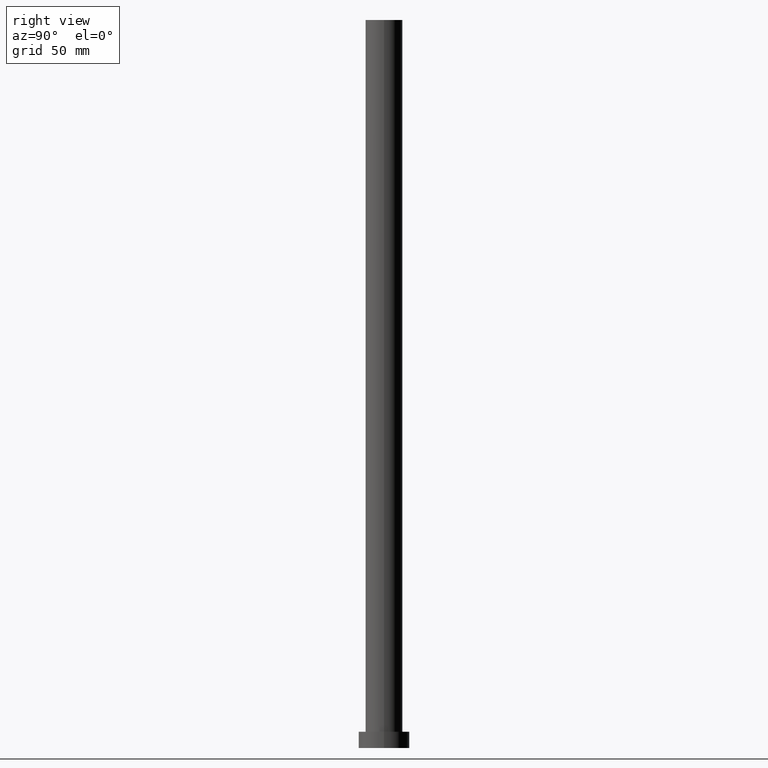
[diagram: clean part render]
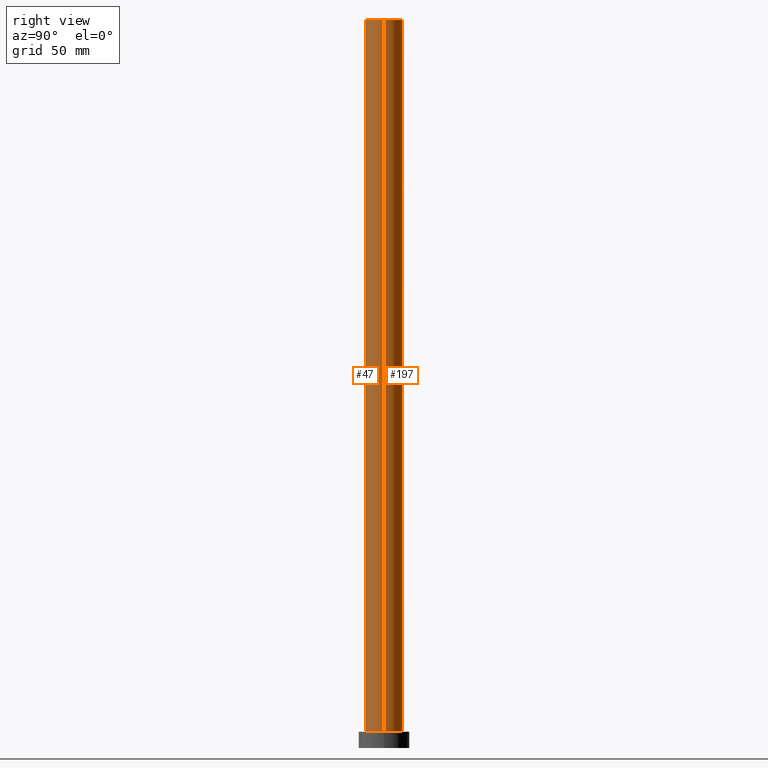
[diagram: same view with one multi-face feature highlighted, each face labeled with its STEP entity id]
A machine part, right view. The highlighted faces form ONE feature: a constant-radius fillet chain: 2 tangent blend faces with common blend radius 8 mm. The faces share edges in the B-rep.
Their STEP definitions:
[1] entity #197 (Cylinder):
#4 = EDGE_CURVE ( 'NONE', #50, #69, #110, .T. ) ;
#16 = CARTESIAN_POINT ( 'NONE',  ( 0.000000000000000000, 0.000000000000000000, 315.0000000000000000 ) ) ;
#26 = CARTESIAN_POINT ( 'NONE',  ( -8.000000000000000000, 0.000000000000000000, 7.000000000000000000 ) ) ;
#30 = EDGE_LOOP ( 'NONE', ( #121, #217, #222, #103 ) ) ;
#37 = DIRECTION ( 'NONE',  ( -1.000000000000000000, 0.000000000000000000, 0.000000000000000000 ) ) ;
#39 = CYLINDRICAL_SURFACE ( 'NONE', #132, 8.000000000000000000 ) ;
#40 = FACE_OUTER_BOUND ( 'NONE', #30, .T. ) ;
#44 = CARTESIAN_POINT ( 'NONE',  ( -8.000000000000000000, 0.000000000000000000, 315.0000000000000000 ) ) ;
#45 = CIRCLE ( 'NONE', #232, 8.000000000000000000 ) ;
#49 = CARTESIAN_POINT ( 'NONE',  ( 8.000000000000000000, 9.797174393178825657E-16, 315.0000000000000000 ) ) ;
#50 = VERTEX_POINT ( 'NONE', #186 ) ;
#55 = DIRECTION ( 'NONE',  ( 1.000000000000000000, 0.000000000000000000, 0.000000000000000000 ) ) ;
#56 = VECTOR ( 'NONE', #112, 1000.000000000000000 ) ;
#69 = VERTEX_POINT ( 'NONE', #131 ) ;
#71 = DIRECTION ( 'NONE',  ( -0.000000000000000000, -0.000000000000000000, -1.000000000000000000 ) ) ;
#72 = EDGE_CURVE ( 'NONE', #89, #91, #80, .T. ) ;
#74 = DIRECTION ( 'NONE',  ( 0.000000000000000000, 0.000000000000000000, 1.000000000000000000 ) ) ;
#80 = LINE ( 'NONE', #44, #192 ) ;
#89 = VERTEX_POINT ( 'NONE', #219 ) ;
#91 = VERTEX_POINT ( 'NONE', #26 ) ;
#96 = CARTESIAN_POINT ( 'NONE',  ( 0.000000000000000000, 0.000000000000000000, 315.0000000000000000 ) ) ;
#101 = EDGE_CURVE ( 'NONE', #69, #91, #105, .T. ) ;
#103 = ORIENTED_EDGE ( 'NONE', *, *, #72, .F. ) ;
#105 = CIRCLE ( 'NONE', #144, 8.000000000000000000 ) ;
#110 = LINE ( 'NONE', #49, #56 ) ;
#112 = DIRECTION ( 'NONE',  ( -0.000000000000000000, -0.000000000000000000, -1.000000000000000000 ) ) ;
#121 = ORIENTED_EDGE ( 'NONE', *, *, #152, .F. ) ;
#131 = CARTESIAN_POINT ( 'NONE',  ( 8.000000000000000000, 9.797174393178825657E-16, 7.000000000000000000 ) ) ;
#132 = AXIS2_PLACEMENT_3D ( 'NONE', #16, #71, #37 ) ;
#135 = DIRECTION ( 'NONE',  ( 0.000000000000000000, 0.000000000000000000, 1.000000000000000000 ) ) ;
#144 = AXIS2_PLACEMENT_3D ( 'NONE', #203, #135, #181 ) ;
#152 = EDGE_CURVE ( 'NONE', #50, #89, #45, .T. ) ;
#181 = DIRECTION ( 'NONE',  ( 1.000000000000000000, 0.000000000000000000, 0.000000000000000000 ) ) ;
#186 = CARTESIAN_POINT ( 'NONE',  ( 8.000000000000000000, 9.797174393178825657E-16, 315.0000000000000000 ) ) ;
#192 = VECTOR ( 'NONE', #240, 1000.000000000000000 ) ;
#197 = ADVANCED_FACE ( 'NONE', ( #40 ), #39, .T. ) ;
#203 = CARTESIAN_POINT ( 'NONE',  ( 0.000000000000000000, 0.000000000000000000, 7.000000000000000000 ) ) ;
#217 = ORIENTED_EDGE ( 'NONE', *, *, #4, .T. ) ;
#219 = CARTESIAN_POINT ( 'NONE',  ( -8.000000000000000000, 0.000000000000000000, 315.0000000000000000 ) ) ;
#222 = ORIENTED_EDGE ( 'NONE', *, *, #101, .T. ) ;
#232 = AXIS2_PLACEMENT_3D ( 'NONE', #96, #74, #55 ) ;
#240 = DIRECTION ( 'NONE',  ( -0.000000000000000000, -0.000000000000000000, -1.000000000000000000 ) ) ;
[2] entity #47 (Cylinder):
#4 = EDGE_CURVE ( 'NONE', #50, #69, #110, .T. ) ;
#9 = AXIS2_PLACEMENT_3D ( 'NONE', #123, #94, #70 ) ;
#10 = EDGE_CURVE ( 'NONE', #89, #50, #25, .T. ) ;
#12 = CYLINDRICAL_SURFACE ( 'NONE', #134, 8.000000000000000000 ) ;
#14 = FACE_OUTER_BOUND ( 'NONE', #15, .T. ) ;
#15 = EDGE_LOOP ( 'NONE', ( #208, #32, #151, #233 ) ) ;
#18 = CARTESIAN_POINT ( 'NONE',  ( 0.000000000000000000, 0.000000000000000000, 7.000000000000000000 ) ) ;
#25 = CIRCLE ( 'NONE', #9, 8.000000000000000000 ) ;
#26 = CARTESIAN_POINT ( 'NONE',  ( -8.000000000000000000, 0.000000000000000000, 7.000000000000000000 ) ) ;
#32 = ORIENTED_EDGE ( 'NONE', *, *, #10, .F. ) ;
#35 = DIRECTION ( 'NONE',  ( -1.000000000000000000, 0.000000000000000000, 0.000000000000000000 ) ) ;
#44 = CARTESIAN_POINT ( 'NONE',  ( -8.000000000000000000, 0.000000000000000000, 315.0000000000000000 ) ) ;
#47 = ADVANCED_FACE ( 'NONE', ( #14 ), #12, .T. ) ;
#49 = CARTESIAN_POINT ( 'NONE',  ( 8.000000000000000000, 9.797174393178825657E-16, 315.0000000000000000 ) ) ;
#50 = VERTEX_POINT ( 'NONE', #186 ) ;
#53 = DIRECTION ( 'NONE',  ( -0.000000000000000000, -0.000000000000000000, -1.000000000000000000 ) ) ;
#56 = VECTOR ( 'NONE', #112, 1000.000000000000000 ) ;
#69 = VERTEX_POINT ( 'NONE', #131 ) ;
#70 = DIRECTION ( 'NONE',  ( 1.000000000000000000, 0.000000000000000000, 0.000000000000000000 ) ) ;
#72 = EDGE_CURVE ( 'NONE', #89, #91, #80, .T. ) ;
#80 = LINE ( 'NONE', #44, #192 ) ;
#89 = VERTEX_POINT ( 'NONE', #219 ) ;
#91 = VERTEX_POINT ( 'NONE', #26 ) ;
#94 = DIRECTION ( 'NONE',  ( 0.000000000000000000, 0.000000000000000000, 1.000000000000000000 ) ) ;
#97 = DIRECTION ( 'NONE',  ( 1.000000000000000000, 0.000000000000000000, 0.000000000000000000 ) ) ;
#98 = AXIS2_PLACEMENT_3D ( 'NONE', #18, #185, #97 ) ;
#110 = LINE ( 'NONE', #49, #56 ) ;
#112 = DIRECTION ( 'NONE',  ( -0.000000000000000000, -0.000000000000000000, -1.000000000000000000 ) ) ;
#123 = CARTESIAN_POINT ( 'NONE',  ( 0.000000000000000000, 0.000000000000000000, 315.0000000000000000 ) ) ;
#131 = CARTESIAN_POINT ( 'NONE',  ( 8.000000000000000000, 9.797174393178825657E-16, 7.000000000000000000 ) ) ;
#134 = AXIS2_PLACEMENT_3D ( 'NONE', #224, #53, #35 ) ;
#151 = ORIENTED_EDGE ( 'NONE', *, *, #72, .T. ) ;
#185 = DIRECTION ( 'NONE',  ( 0.000000000000000000, 0.000000000000000000, 1.000000000000000000 ) ) ;
#186 = CARTESIAN_POINT ( 'NONE',  ( 8.000000000000000000, 9.797174393178825657E-16, 315.0000000000000000 ) ) ;
#192 = VECTOR ( 'NONE', #240, 1000.000000000000000 ) ;
#208 = ORIENTED_EDGE ( 'NONE', *, *, #4, .F. ) ;
#211 = EDGE_CURVE ( 'NONE', #91, #69, #213, .T. ) ;
#213 = CIRCLE ( 'NONE', #98, 8.000000000000000000 ) ;
#219 = CARTESIAN_POINT ( 'NONE',  ( -8.000000000000000000, 0.000000000000000000, 315.0000000000000000 ) ) ;
#224 = CARTESIAN_POINT ( 'NONE',  ( 0.000000000000000000, 0.000000000000000000, 315.0000000000000000 ) ) ;
#233 = ORIENTED_EDGE ( 'NONE', *, *, #211, .T. ) ;
#240 = DIRECTION ( 'NONE',  ( -0.000000000000000000, -0.000000000000000000, -1.000000000000000000 ) ) ;